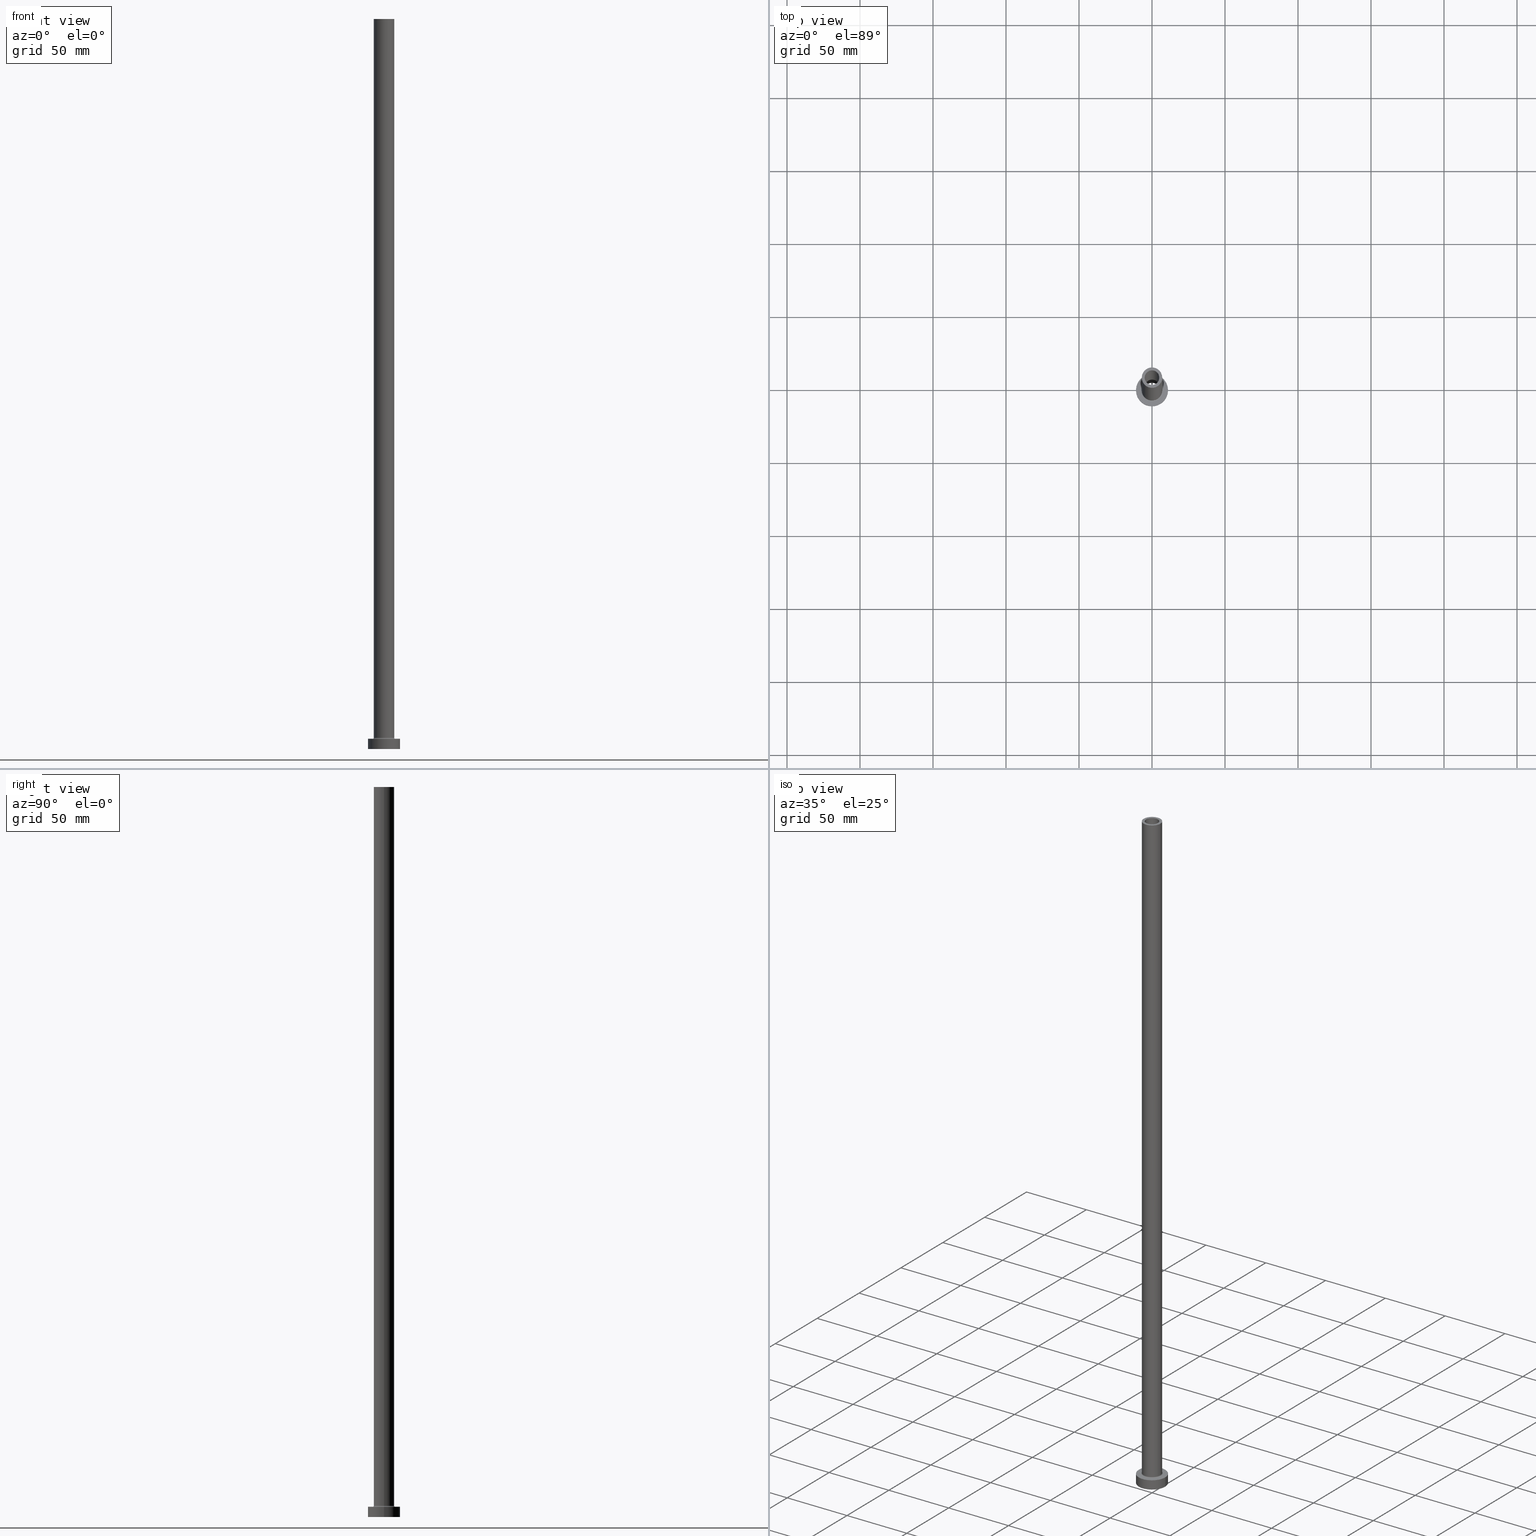
[diagram: canonical four-view strip — front | top / right | iso, engineering-drawing reading convention]
A machine part, canonical four-view strip (front | top / right | iso — engineering-drawing reading convention). The complete STEP part file that produces these views, byte-faithful:
ISO-10303-21;
HEADER;
FILE_DESCRIPTION (( 'STEP AP203' ),
    '1' );
FILE_NAME ('cfa8.STEP',
    '2023-02-13T10:06:08',
    ( '' ),
    ( '' ),
    'SwSTEP 2.0',
    'SolidWorks 2019',
    '' );
FILE_SCHEMA (( 'CONFIG_CONTROL_DESIGN' ));
ENDSEC;

DATA;
#1 = ORIENTED_EDGE ( 'NONE', *, *, #247, .F. ) ;
#2 = AXIS2_PLACEMENT_3D ( 'NONE', #366, #148, #281 ) ;
#3 = ORIENTED_EDGE ( 'NONE', *, *, #323, .F. ) ;
#4 = DIRECTION ( 'NONE',  ( 1.000000000000000000, 0.000000000000000000, 0.000000000000000000 ) ) ;
#5 = ORIENTED_EDGE ( 'NONE', *, *, #421, .F. ) ;
#6 = DIRECTION ( 'NONE',  ( 0.000000000000000000, 0.000000000000000000, 1.000000000000000000 ) ) ;
#7 = APPLICATION_CONTEXT ( 'configuration controlled 3d designs of mechanical parts and assemblies' ) ;
#8 = CARTESIAN_POINT ( 'NONE',  ( -7.000000000000000888, 0.000000000000000000, 500.0000000000000000 ) ) ;
#9 = AXIS2_PLACEMENT_3D ( 'NONE', #28, #390, #241 ) ;
#10 = ORIENTED_EDGE ( 'NONE', *, *, #195, .F. ) ;
#11 = AXIS2_PLACEMENT_3D ( 'NONE', #246, #294, #326 ) ;
#12 = DIRECTION ( 'NONE',  ( 0.000000000000000000, 0.000000000000000000, 1.000000000000000000 ) ) ;
#13 = ORIENTED_EDGE ( 'NONE', *, *, #224, .T. ) ;
#14 = APPROVAL_STATUS ( 'not_yet_approved' ) ;
#15 = CARTESIAN_POINT ( 'NONE',  ( 0.000000000000000000, 0.000000000000000000, 500.0000000000000000 ) ) ;
#16 = COORDINATED_UNIVERSAL_TIME_OFFSET ( 1, 0, .AHEAD. ) ;
#17 = EDGE_LOOP ( 'NONE', ( #370, #393, #122, #286 ) ) ;
#18 = CC_DESIGN_APPROVAL ( #155, ( #460 ) ) ;
#19 = DIRECTION ( 'NONE',  ( 1.000000000000000000, 0.000000000000000000, 0.000000000000000000 ) ) ;
#20 = EDGE_CURVE ( 'NONE', #83, #450, #37, .T. ) ;
#21 = VERTEX_POINT ( 'NONE', #135 ) ;
#22 = DIRECTION ( 'NONE',  ( -1.000000000000000000, 0.000000000000000000, 0.000000000000000000 ) ) ;
#23 = AXIS2_PLACEMENT_3D ( 'NONE', #163, #57, #197 ) ;
#24 = CARTESIAN_POINT ( 'NONE',  ( 5.000000000000000000, 6.123233995736765296E-16, 500.0000000000000000 ) ) ;
#25 = DIRECTION ( 'NONE',  ( 1.000000000000000000, 0.000000000000000000, 0.000000000000000000 ) ) ;
#26 = DIRECTION ( 'NONE',  ( 1.000000000000000000, 0.000000000000000000, 0.000000000000000000 ) ) ;
#27 = DATE_TIME_ROLE ( 'classification_date' ) ;
#28 = CARTESIAN_POINT ( 'NONE',  ( 0.000000000000000000, 0.000000000000000000, 455.0000000000000000 ) ) ;
#29 = CARTESIAN_POINT ( 'NONE',  ( 0.000000000000000000, 0.000000000000000000, 455.0000000000000000 ) ) ;
#30 = DIRECTION ( 'NONE',  ( 1.000000000000000000, 0.000000000000000000, 0.000000000000000000 ) ) ;
#31 = CALENDAR_DATE ( 2023, 13, 2 ) ;
#32 = APPROVAL_PERSON_ORGANIZATION ( #425, #368, #427 ) ;
#33 = CC_DESIGN_PERSON_AND_ORGANIZATION_ASSIGNMENT ( #54, #198, ( #460 ) ) ;
#34 = EDGE_CURVE ( 'NONE', #188, #83, #343, .T. ) ;
#35 = ORIENTED_EDGE ( 'NONE', *, *, #159, .T. ) ;
#36 = ORIENTED_EDGE ( 'NONE', *, *, #421, .T. ) ;
#37 = CIRCLE ( 'NONE', #275, 11.00000000000000000 ) ;
#38 = LINE ( 'NONE', #126, #240 ) ;
#39 = AXIS2_PLACEMENT_3D ( 'NONE', #389, #141, #67 ) ;
#40 = VECTOR ( 'NONE', #110, 1000.000000000000000 ) ;
#41 = AXIS2_PLACEMENT_3D ( 'NONE', #305, #345, #444 ) ;
#42 = ORIENTED_EDGE ( 'NONE', *, *, #89, .F. ) ;
#43 = CARTESIAN_POINT ( 'NONE',  ( 0.000000000000000000, 0.000000000000000000, 7.699999999999985079 ) ) ;
#44 = ORIENTED_EDGE ( 'NONE', *, *, #139, .T. ) ;
#45 = FACE_OUTER_BOUND ( 'NONE', #55, .T. ) ;
#46 = ORIENTED_EDGE ( 'NONE', *, *, #282, .F. ) ;
#47 = CYLINDRICAL_SURFACE ( 'NONE', #446, 11.00000000000000000 ) ;
#48 = AXIS2_PLACEMENT_3D ( 'NONE', #29, #274, #30 ) ;
#49 = DIRECTION ( 'NONE',  ( 1.000000000000000000, 0.000000000000000000, 0.000000000000000000 ) ) ;
#50 = PRODUCT_DEFINITION_FORMATION_WITH_SPECIFIED_SOURCE ( 'LIBOVOLN�', '', #298, .NOT_KNOWN. ) ;
#51 = ADVANCED_FACE ( 'NONE', ( #411 ), #379, .T. ) ;
#52 = CARTESIAN_POINT ( 'NONE',  ( -5.150000000000001243, 0.000000000000000000, 0.000000000000000000 ) ) ;
#53 = EDGE_LOOP ( 'NONE', ( #35, #74, #290, #330 ) ) ;
#54 = PERSON_AND_ORGANIZATION ( #78, #454 ) ;
#55 = EDGE_LOOP ( 'NONE', ( #459, #254 ) ) ;
#56 = ADVANCED_FACE ( 'NONE', ( #95, #98 ), #443, .F. ) ;
#57 = DIRECTION ( 'NONE',  ( 0.000000000000000000, 0.000000000000000000, 1.000000000000000000 ) ) ;
#58 = DIRECTION ( 'NONE',  ( 1.000000000000000000, 0.000000000000000000, -0.000000000000000000 ) ) ;
#59 = DIRECTION ( 'NONE',  ( 0.000000000000000000, 0.000000000000000000, 1.000000000000000000 ) ) ;
#60 = CARTESIAN_POINT ( 'NONE',  ( 0.000000000000000000, 0.000000000000000000, 0.000000000000000000 ) ) ;
#61 = EDGE_CURVE ( 'NONE', #115, #120, #75, .T. ) ;
#62 = CALENDAR_DATE ( 2023, 13, 2 ) ;
#63 = DIRECTION ( 'NONE',  ( 1.000000000000000000, 0.000000000000000000, -0.000000000000000000 ) ) ;
#64 = ADVANCED_FACE ( 'NONE', ( #266 ), #170, .T. ) ;
#65 = APPROVAL_DATE_TIME ( #142, #194 ) ;
#66 = CIRCLE ( 'NONE', #118, 5.000000000000000000 ) ;
#67 = DIRECTION ( 'NONE',  ( 1.000000000000000000, 0.000000000000000000, 0.000000000000000000 ) ) ;
#68 = DATE_TIME_ROLE ( 'creation_date' ) ;
#69 = DIRECTION ( 'NONE',  ( 1.000000000000000000, 0.000000000000000000, 0.000000000000000000 ) ) ;
#70 = EDGE_CURVE ( 'NONE', #115, #396, #260, .T. ) ;
#71 = EDGE_LOOP ( 'NONE', ( #322, #13 ) ) ;
#72 = AXIS2_PLACEMENT_3D ( 'NONE', #371, #335, #221 ) ;
#73 = ORIENTED_EDGE ( 'NONE', *, *, #70, .T. ) ;
#74 = ORIENTED_EDGE ( 'NONE', *, *, #247, .T. ) ;
#75 = CIRCLE ( 'NONE', #86, 0.7000000000000000666 ) ;
#76 = AXIS2_PLACEMENT_3D ( 'NONE', #455, #270, #69 ) ;
#77 = CARTESIAN_POINT ( 'NONE',  ( 5.000000000000000000, 6.123233995736765296E-16, 455.0000000000000000 ) ) ;
#78 = PERSON ( 'NEUR�EN�', 'NEUR�EN�', 'NEUR�EN�', ('NEUR�EN�'), ('NEUR�EN�'), ('NEUR�EN�') ) ;
#79 = EDGE_LOOP ( 'NONE', ( #215, #227 ) ) ;
#80 = DESIGN_CONTEXT ( 'detailed design', #409, 'design' ) ;
#81 = DIRECTION ( 'NONE',  ( -0.000000000000000000, -0.000000000000000000, -1.000000000000000000 ) ) ;
#82 = LOCAL_TIME ( 11, 6, 8.000000000000000000, #313 ) ;
#83 = VERTEX_POINT ( 'NONE', #382 ) ;
#84 = CARTESIAN_POINT ( 'NONE',  ( 0.000000000000000000, 0.000000000000000000, 7.699999999999985079 ) ) ;
#85 = ORIENTED_EDGE ( 'NONE', *, *, #89, .T. ) ;
#86 = AXIS2_PLACEMENT_3D ( 'NONE', #445, #132, #202 ) ;
#87 = CARTESIAN_POINT ( 'NONE',  ( 0.000000000000000000, 0.000000000000000000, 7.000000000000000000 ) ) ;
#88 = VECTOR ( 'NONE', #310, 1000.000000000000000 ) ;
#89 = EDGE_CURVE ( 'NONE', #251, #432, #283, .T. ) ;
#90 = DIRECTION ( 'NONE',  ( -0.000000000000000000, -0.000000000000000000, -1.000000000000000000 ) ) ;
#91 = DIRECTION ( 'NONE',  ( -1.000000000000000000, 0.000000000000000000, 0.000000000000000000 ) ) ;
#92 = ORIENTED_EDGE ( 'NONE', *, *, #262, .F. ) ;
#93 = CC_DESIGN_APPROVAL ( #368, ( #234 ) ) ;
#94 =( NAMED_UNIT ( * ) PLANE_ANGLE_UNIT ( ) SI_UNIT ( $, .RADIAN. ) );
#95 = FACE_BOUND ( 'NONE', #125, .T. ) ;
#96 = EDGE_CURVE ( 'NONE', #394, #450, #235, .T. ) ;
#97 = CARTESIAN_POINT ( 'NONE',  ( 0.000000000000000000, 0.000000000000000000, 7.000000000000000000 ) ) ;
#98 = FACE_OUTER_BOUND ( 'NONE', #301, .T. ) ;
#99 = CYLINDRICAL_SURFACE ( 'NONE', #243, 11.00000000000000000 ) ;
#100 = DIRECTION ( 'NONE',  ( 1.000000000000000000, 0.000000000000000000, 0.000000000000000000 ) ) ;
#101 = CIRCLE ( 'NONE', #278, 11.00000000000000000 ) ;
#102 = DIRECTION ( 'NONE',  ( -0.000000000000000000, -0.000000000000000000, -1.000000000000000000 ) ) ;
#103 = DIRECTION ( 'NONE',  ( -0.000000000000000000, -0.000000000000000000, -1.000000000000000000 ) ) ;
#104 = APPLICATION_PROTOCOL_DEFINITION ( 'international standard', 'config_control_design', 1994, #409 ) ;
#105 = DIRECTION ( 'NONE',  ( 0.000000000000000000, 0.000000000000000000, -1.000000000000000000 ) ) ;
#106 = CARTESIAN_POINT ( 'NONE',  ( 0.000000000000000000, 0.000000000000000000, 500.0000000000000000 ) ) ;
#107 = AXIS2_PLACEMENT_3D ( 'NONE', #172, #211, #357 ) ;
#108 = AXIS2_PLACEMENT_3D ( 'NONE', #97, #203, #348 ) ;
#109 = AXIS2_PLACEMENT_3D ( 'NONE', #351, #304, #25 ) ;
#110 = DIRECTION ( 'NONE',  ( 0.000000000000000000, 0.000000000000000000, -1.000000000000000000 ) ) ;
#111 = CALENDAR_DATE ( 2023, 13, 2 ) ;
#112 = FACE_OUTER_BOUND ( 'NONE', #288, .T. ) ;
#113 = VECTOR ( 'NONE', #267, 1000.000000000000000 ) ;
#114 = CIRCLE ( 'NONE', #329, 5.000000000000000000 ) ;
#115 = VERTEX_POINT ( 'NONE', #136 ) ;
#116 = DATE_AND_TIME ( #111, #356 ) ;
#117 = CIRCLE ( 'NONE', #9, 5.150000000000001243 ) ;
#118 = AXIS2_PLACEMENT_3D ( 'NONE', #395, #130, #255 ) ;
#119 = ORIENTED_EDGE ( 'NONE', *, *, #282, .T. ) ;
#120 = VERTEX_POINT ( 'NONE', #178 ) ;
#121 = DIRECTION ( 'NONE',  ( -1.000000000000000000, 0.000000000000000000, 0.000000000000000000 ) ) ;
#122 = ORIENTED_EDGE ( 'NONE', *, *, #34, .T. ) ;
#123 = FACE_OUTER_BOUND ( 'NONE', #17, .T. ) ;
#124 = VECTOR ( 'NONE', #375, 1000.000000000000000 ) ;
#125 = EDGE_LOOP ( 'NONE', ( #182, #437 ) ) ;
#126 = CARTESIAN_POINT ( 'NONE',  ( -5.000000000000000000, 0.000000000000000000, 500.0000000000000000 ) ) ;
#127 = ORIENTED_EDGE ( 'NONE', *, *, #333, .T. ) ;
#128 = PRODUCT_DEFINITION_SHAPE ( 'NONE', 'NONE',  #460 ) ;
#129 = AXIS2_PLACEMENT_3D ( 'NONE', #236, #244, #100 ) ;
#130 = DIRECTION ( 'NONE',  ( 0.000000000000000000, 0.000000000000000000, 1.000000000000000000 ) ) ;
#131 = EDGE_LOOP ( 'NONE', ( #408, #256 ) ) ;
#132 = DIRECTION ( 'NONE',  ( 1.224646799147353207E-16, 1.000000000000000000, -0.000000000000000000 ) ) ;
#133 = TOROIDAL_SURFACE ( 'NONE', #431, 7.700000000000001066, 0.6999999999999999556 ) ;
#134 = CARTESIAN_POINT ( 'NONE',  ( 11.00000000000000000, 1.347111479062088405E-15, 0.000000000000000000 ) ) ;
#135 = CARTESIAN_POINT ( 'NONE',  ( 7.700000000000001066, 0.000000000000000000, 6.999999999999992006 ) ) ;
#136 = CARTESIAN_POINT ( 'NONE',  ( -7.000000000000000888, 0.000000000000000000, 7.699999999999985079 ) ) ;
#137 = FACE_BOUND ( 'NONE', #166, .T. ) ;
#138 = CIRCLE ( 'NONE', #41, 7.000000000000000888 ) ;
#139 = EDGE_CURVE ( 'NONE', #213, #363, #114, .T. ) ;
#140 = ADVANCED_BREP_SHAPE_REPRESENTATION ( 'cfa8', ( #231, #109 ), #192 ) ;
#141 = DIRECTION ( 'NONE',  ( 0.000000000000000000, 0.000000000000000000, 1.000000000000000000 ) ) ;
#142 = DATE_AND_TIME ( #31, #374 ) ;
#143 = CARTESIAN_POINT ( 'NONE',  ( 0.000000000000000000, 0.000000000000000000, 500.0000000000000000 ) ) ;
#144 = DIRECTION ( 'NONE',  ( 1.000000000000000000, 0.000000000000000000, 0.000000000000000000 ) ) ;
#145 = EDGE_CURVE ( 'NONE', #450, #83, #276, .T. ) ;
#146 = CIRCLE ( 'NONE', #249, 5.000000000000000000 ) ;
#147 = DATE_AND_TIME ( #321, #82 ) ;
#148 = DIRECTION ( 'NONE',  ( 0.000000000000000000, 0.000000000000000000, -1.000000000000000000 ) ) ;
#149 = VERTEX_POINT ( 'NONE', #352 ) ;
#150 = CC_DESIGN_SECURITY_CLASSIFICATION ( #234, ( #50 ) ) ;
#151 = EDGE_CURVE ( 'NONE', #217, #229, #117, .T. ) ;
#152 = EDGE_LOOP ( 'NONE', ( #168, #181, #225, #295 ) ) ;
#153 = ORIENTED_EDGE ( 'NONE', *, *, #70, .F. ) ;
#154 = CARTESIAN_POINT ( 'NONE',  ( 0.000000000000000000, 0.000000000000000000, 7.000000000000000000 ) ) ;
#155 = APPROVAL ( #14, 'NEUR�EN�' ) ;
#156 = CARTESIAN_POINT ( 'NONE',  ( 0.000000000000000000, 0.000000000000000000, 455.0000000000000000 ) ) ;
#157 = AXIS2_PLACEMENT_3D ( 'NONE', #208, #350, #457 ) ;
#158 = CARTESIAN_POINT ( 'NONE',  ( 0.000000000000000000, 0.000000000000000000, 0.000000000000000000 ) ) ;
#159 = EDGE_CURVE ( 'NONE', #229, #217, #391, .T. ) ;
#160 = CARTESIAN_POINT ( 'NONE',  ( 7.000000000000000888, 8.572527594031474176E-16, 7.699999999999985079 ) ) ;
#161 = DIRECTION ( 'NONE',  ( 0.000000000000000000, 0.000000000000000000, 1.000000000000000000 ) ) ;
#162 = CARTESIAN_POINT ( 'NONE',  ( 0.000000000000000000, 0.000000000000000000, 500.0000000000000000 ) ) ;
#163 = CARTESIAN_POINT ( 'NONE',  ( 0.000000000000000000, 0.000000000000000000, 455.0000000000000000 ) ) ;
#164 = CALENDAR_DATE ( 2023, 13, 2 ) ;
#165 = CIRCLE ( 'NONE', #72, 5.150000000000001243 ) ;
#166 = EDGE_LOOP ( 'NONE', ( #42, #190 ) ) ;
#167 = PRODUCT_RELATED_PRODUCT_CATEGORY ( 'detail', '', ( #298 ) ) ;
#168 = ORIENTED_EDGE ( 'NONE', *, *, #224, .F. ) ;
#169 =( LENGTH_UNIT ( ) NAMED_UNIT ( * ) SI_UNIT ( .MILLI., .METRE. ) );
#170 = CYLINDRICAL_SURFACE ( 'NONE', #360, 7.000000000000000888 ) ;
#171 = EDGE_CURVE ( 'NONE', #213, #336, #418, .T. ) ;
#172 = CARTESIAN_POINT ( 'NONE',  ( 0.000000000000000000, 0.000000000000000000, 7.000000000000000000 ) ) ;
#173 = CIRCLE ( 'NONE', #39, 7.000000000000000888 ) ;
#174 = APPROVAL_DATE_TIME ( #116, #368 ) ;
#175 = DIRECTION ( 'NONE',  ( 0.000000000000000000, 0.000000000000000000, 1.000000000000000000 ) ) ;
#176 = APPROVAL_STATUS ( 'not_yet_approved' ) ;
#177 = EDGE_CURVE ( 'NONE', #363, #213, #387, .T. ) ;
#178 = CARTESIAN_POINT ( 'NONE',  ( -7.700000000000001066, 9.429780353434621002E-16, 6.999999999999992006 ) ) ;
#179 = DIRECTION ( 'NONE',  ( 0.000000000000000000, 0.000000000000000000, 1.000000000000000000 ) ) ;
#180 = PERSON_AND_ORGANIZATION_ROLE ( 'classification_officer' ) ;
#181 = ORIENTED_EDGE ( 'NONE', *, *, #262, .T. ) ;
#182 = ORIENTED_EDGE ( 'NONE', *, *, #342, .T. ) ;
#183 = DIRECTION ( 'NONE',  ( 1.000000000000000000, 0.000000000000000000, 0.000000000000000000 ) ) ;
#184 = CIRCLE ( 'NONE', #108, 7.700000000000001066 ) ;
#185 = VERTEX_POINT ( 'NONE', #238 ) ;
#186 = FACE_OUTER_BOUND ( 'NONE', #284, .T. ) ;
#187 = EDGE_CURVE ( 'NONE', #188, #394, #101, .T. ) ;
#188 = VERTEX_POINT ( 'NONE', #385 ) ;
#189 = LINE ( 'NONE', #8, #124 ) ;
#190 = ORIENTED_EDGE ( 'NONE', *, *, #392, .F. ) ;
#191 = DIRECTION ( 'NONE',  ( 0.000000000000000000, 0.000000000000000000, -1.000000000000000000 ) ) ;
#192 =( GEOMETRIC_REPRESENTATION_CONTEXT ( 3 ) GLOBAL_UNCERTAINTY_ASSIGNED_CONTEXT ( ( #271 ) ) GLOBAL_UNIT_ASSIGNED_CONTEXT ( ( #169, #94, #269 ) ) REPRESENTATION_CONTEXT ( 'NONE', 'WORKASPACE' ) );
#193 = ORIENTED_EDGE ( 'NONE', *, *, #435, .T. ) ;
#194 = APPROVAL ( #176, 'NEUR�EN�' ) ;
#195 = EDGE_CURVE ( 'NONE', #394, #188, #308, .T. ) ;
#196 = FACE_BOUND ( 'NONE', #448, .T. ) ;
#197 = DIRECTION ( 'NONE',  ( 1.000000000000000000, 0.000000000000000000, -0.000000000000000000 ) ) ;
#198 = PERSON_AND_ORGANIZATION_ROLE ( 'creator' ) ;
#199 = ORIENTED_EDGE ( 'NONE', *, *, #151, .T. ) ;
#200 = FACE_OUTER_BOUND ( 'NONE', #376, .T. ) ;
#201 = AXIS2_PLACEMENT_3D ( 'NONE', #206, #412, #22 ) ;
#202 = DIRECTION ( 'NONE',  ( -1.000000000000000000, 1.224646799147351975E-16, 0.000000000000000000 ) ) ;
#203 = DIRECTION ( 'NONE',  ( -0.000000000000000000, -0.000000000000000000, -1.000000000000000000 ) ) ;
#204 = ADVANCED_FACE ( 'NONE', ( #362, #312 ), #205, .T. ) ;
#205 = PLANE ( 'NONE',  #157 ) ;
#206 = CARTESIAN_POINT ( 'NONE',  ( 0.000000000000000000, 0.000000000000000000, 469.5663996924429284 ) ) ;
#207 = CARTESIAN_POINT ( 'NONE',  ( 5.150000000000001243, 6.306931015608868610E-16, 455.0000000000000000 ) ) ;
#208 = CARTESIAN_POINT ( 'NONE',  ( 0.000000000000000000, 0.000000000000000000, 500.0000000000000000 ) ) ;
#209 = CC_DESIGN_APPROVAL ( #194, ( #50 ) ) ;
#210 = CARTESIAN_POINT ( 'NONE',  ( -5.150000000000001243, 0.000000000000000000, 455.0000000000000000 ) ) ;
#211 = DIRECTION ( 'NONE',  ( 0.000000000000000000, 0.000000000000000000, 1.000000000000000000 ) ) ;
#212 = COORDINATED_UNIVERSAL_TIME_OFFSET ( 1, 0, .AHEAD. ) ;
#213 = VERTEX_POINT ( 'NONE', #24 ) ;
#214 = ADVANCED_FACE ( 'NONE', ( #137, #272 ), #424, .F. ) ;
#215 = ORIENTED_EDGE ( 'NONE', *, *, #177, .F. ) ;
#216 = CYLINDRICAL_SURFACE ( 'NONE', #11, 5.000000000000000000 ) ;
#217 = VERTEX_POINT ( 'NONE', #207 ) ;
#218 = CIRCLE ( 'NONE', #334, 7.700000000000001066 ) ;
#219 = LINE ( 'NONE', #328, #400 ) ;
#220 = EDGE_LOOP ( 'NONE', ( #1, #199, #378, #85 ) ) ;
#221 = DIRECTION ( 'NONE',  ( 1.000000000000000000, 0.000000000000000000, 0.000000000000000000 ) ) ;
#222 = ORIENTED_EDGE ( 'NONE', *, *, #159, .F. ) ;
#223 = DIRECTION ( 'NONE',  ( 0.000000000000000000, 0.000000000000000000, -1.000000000000000000 ) ) ;
#224 = EDGE_CURVE ( 'NONE', #405, #185, #173, .T. ) ;
#225 = ORIENTED_EDGE ( 'NONE', *, *, #442, .T. ) ;
#226 = DIRECTION ( 'NONE',  ( 1.000000000000000000, 0.000000000000000000, 0.000000000000000000 ) ) ;
#227 = ORIENTED_EDGE ( 'NONE', *, *, #139, .F. ) ;
#228 = PERSON_AND_ORGANIZATION ( #78, #454 ) ;
#229 = VERTEX_POINT ( 'NONE', #210 ) ;
#230 = DIRECTION ( 'NONE',  ( -0.000000000000000000, -0.000000000000000000, -1.000000000000000000 ) ) ;
#231 = MANIFOLD_SOLID_BREP ( 'Odebrat vysunut�m4', #383 ) ;
#232 = EDGE_LOOP ( 'NONE', ( #92, #367, #127, #73 ) ) ;
#233 = CARTESIAN_POINT ( 'NONE',  ( 5.150000000000001243, 6.306931015608868610E-16, 0.000000000000000000 ) ) ;
#234 = SECURITY_CLASSIFICATION ( '', '', #285 ) ;
#235 = LINE ( 'NONE', #420, #88 ) ;
#236 = CARTESIAN_POINT ( 'NONE',  ( 0.000000000000000000, 0.000000000000000000, 7.699999999999985079 ) ) ;
#237 = APPROVAL_ROLE ( '' ) ;
#238 = CARTESIAN_POINT ( 'NONE',  ( -7.000000000000000888, 0.000000000000000000, 500.0000000000000000 ) ) ;
#239 = SHAPE_DEFINITION_REPRESENTATION ( #128, #140 ) ;
#240 = VECTOR ( 'NONE', #191, 1000.000000000000000 ) ;
#241 = DIRECTION ( 'NONE',  ( 1.000000000000000000, 0.000000000000000000, 0.000000000000000000 ) ) ;
#242 = AXIS2_PLACEMENT_3D ( 'NONE', #456, #175, #416 ) ;
#243 = AXIS2_PLACEMENT_3D ( 'NONE', #300, #230, #302 ) ;
#244 = DIRECTION ( 'NONE',  ( 0.000000000000000000, 0.000000000000000000, 1.000000000000000000 ) ) ;
#245 = PERSON_AND_ORGANIZATION ( #78, #454 ) ;
#246 = CARTESIAN_POINT ( 'NONE',  ( 0.000000000000000000, 0.000000000000000000, 500.0000000000000000 ) ) ;
#247 = EDGE_CURVE ( 'NONE', #217, #432, #358, .T. ) ;
#248 = ORIENTED_EDGE ( 'NONE', *, *, #342, .F. ) ;
#249 = AXIS2_PLACEMENT_3D ( 'NONE', #156, #253, #183 ) ;
#250 = PERSON_AND_ORGANIZATION ( #78, #454 ) ;
#251 = VERTEX_POINT ( 'NONE', #52 ) ;
#252 = ORIENTED_EDGE ( 'NONE', *, *, #151, .F. ) ;
#253 = DIRECTION ( 'NONE',  ( 0.000000000000000000, 0.000000000000000000, 1.000000000000000000 ) ) ;
#254 = ORIENTED_EDGE ( 'NONE', *, *, #195, .T. ) ;
#255 = DIRECTION ( 'NONE',  ( 1.000000000000000000, 0.000000000000000000, 0.000000000000000000 ) ) ;
#256 = ORIENTED_EDGE ( 'NONE', *, *, #145, .F. ) ;
#257 = CC_DESIGN_PERSON_AND_ORGANIZATION_ASSIGNMENT ( #386, #355, ( #50 ) ) ;
#258 = CARTESIAN_POINT ( 'NONE',  ( 7.700000000000001066, 0.000000000000000000, 7.699999999999985079 ) ) ;
#259 = CARTESIAN_POINT ( 'NONE',  ( -11.00000000000000000, 0.000000000000000000, 7.000000000000000000 ) ) ;
#260 = CIRCLE ( 'NONE', #129, 7.000000000000000888 ) ;
#261 = CARTESIAN_POINT ( 'NONE',  ( 7.000000000000000888, 8.572527594031474176E-16, 500.0000000000000000 ) ) ;
#262 = EDGE_CURVE ( 'NONE', #405, #396, #297, .T. ) ;
#263 = ORIENTED_EDGE ( 'NONE', *, *, #171, .F. ) ;
#264 = CYLINDRICAL_SURFACE ( 'NONE', #201, 5.150000000000001243 ) ;
#265 = AXIS2_PLACEMENT_3D ( 'NONE', #258, #426, #223 ) ;
#266 = FACE_OUTER_BOUND ( 'NONE', #152, .T. ) ;
#267 = DIRECTION ( 'NONE',  ( -0.000000000000000000, -0.000000000000000000, -1.000000000000000000 ) ) ;
#268 = ADVANCED_FACE ( 'NONE', ( #373 ), #440, .F. ) ;
#269 =( NAMED_UNIT ( * ) SI_UNIT ( $, .STERADIAN. ) SOLID_ANGLE_UNIT ( ) );
#270 = DIRECTION ( 'NONE',  ( 0.000000000000000000, 0.000000000000000000, 1.000000000000000000 ) ) ;
#271 = UNCERTAINTY_MEASURE_WITH_UNIT (LENGTH_MEASURE( 1.000000000000000082E-05 ), #169, 'distance_accuracy_value', 'NONE');
#272 = FACE_OUTER_BOUND ( 'NONE', #131, .T. ) ;
#273 = PERSON_AND_ORGANIZATION ( #78, #454 ) ;
#274 = DIRECTION ( 'NONE',  ( 0.000000000000000000, 0.000000000000000000, 1.000000000000000000 ) ) ;
#275 = AXIS2_PLACEMENT_3D ( 'NONE', #158, #161, #49 ) ;
#276 = CIRCLE ( 'NONE', #76, 11.00000000000000000 ) ;
#277 = DIRECTION ( 'NONE',  ( -0.000000000000000000, -0.000000000000000000, -1.000000000000000000 ) ) ;
#278 = AXIS2_PLACEMENT_3D ( 'NONE', #314, #279, #26 ) ;
#279 = DIRECTION ( 'NONE',  ( 0.000000000000000000, 0.000000000000000000, 1.000000000000000000 ) ) ;
#280 = LOCAL_TIME ( 11, 6, 8.000000000000000000, #16 ) ;
#281 = DIRECTION ( 'NONE',  ( -1.000000000000000000, 0.000000000000000000, 0.000000000000000000 ) ) ;
#282 = EDGE_CURVE ( 'NONE', #363, #149, #38, .T. ) ;
#283 = CIRCLE ( 'NONE', #339, 5.150000000000001243 ) ;
#284 = EDGE_LOOP ( 'NONE', ( #332, #364, #338, #5 ) ) ;
#285 = SECURITY_CLASSIFICATION_LEVEL ( 'unclassified' ) ;
#286 = ORIENTED_EDGE ( 'NONE', *, *, #20, .T. ) ;
#287 = APPROVAL_PERSON_ORGANIZATION ( #228, #155, #237 ) ;
#288 = EDGE_LOOP ( 'NONE', ( #263, #44, #119, #3 ) ) ;
#289 = CARTESIAN_POINT ( 'NONE',  ( -5.000000000000000000, 0.000000000000000000, 500.0000000000000000 ) ) ;
#290 = ORIENTED_EDGE ( 'NONE', *, *, #392, .T. ) ;
#291 = ORIENTED_EDGE ( 'NONE', *, *, #435, .F. ) ;
#292 = CC_DESIGN_DATE_AND_TIME_ASSIGNMENT ( #147, #27, ( #234 ) ) ;
#293 = VECTOR ( 'NONE', #105, 1000.000000000000000 ) ;
#294 = DIRECTION ( 'NONE',  ( 0.000000000000000000, 0.000000000000000000, -1.000000000000000000 ) ) ;
#295 = ORIENTED_EDGE ( 'NONE', *, *, #333, .F. ) ;
#296 = ADVANCED_FACE ( 'NONE', ( #331 ), #398, .F. ) ;
#297 = LINE ( 'NONE', #261, #430 ) ;
#298 = PRODUCT ( 'cfa8', 'cfa8', '', ( #307 ) ) ;
#299 = DIRECTION ( 'NONE',  ( -1.000000000000000000, 0.000000000000000000, 0.000000000000000000 ) ) ;
#300 = CARTESIAN_POINT ( 'NONE',  ( 0.000000000000000000, 0.000000000000000000, 7.000000000000000000 ) ) ;
#301 = EDGE_LOOP ( 'NONE', ( #222, #252 ) ) ;
#302 = DIRECTION ( 'NONE',  ( -1.000000000000000000, 0.000000000000000000, 0.000000000000000000 ) ) ;
#303 = AXIS2_PLACEMENT_3D ( 'NONE', #162, #452, #449 ) ;
#304 = DIRECTION ( 'NONE',  ( 0.000000000000000000, 0.000000000000000000, 1.000000000000000000 ) ) ;
#305 = CARTESIAN_POINT ( 'NONE',  ( 0.000000000000000000, 0.000000000000000000, 7.699999999999985079 ) ) ;
#306 = CARTESIAN_POINT ( 'NONE',  ( 5.000000000000000000, 6.123233995736765296E-16, 500.0000000000000000 ) ) ;
#307 = MECHANICAL_CONTEXT ( 'NONE', #7, 'mechanical' ) ;
#308 = CIRCLE ( 'NONE', #107, 11.00000000000000000 ) ;
#309 = APPROVAL_PERSON_ORGANIZATION ( #315, #194, #419 ) ;
#310 = DIRECTION ( 'NONE',  ( -0.000000000000000000, -0.000000000000000000, -1.000000000000000000 ) ) ;
#311 = COORDINATED_UNIVERSAL_TIME_OFFSET ( 1, 0, .AHEAD. ) ;
#312 = FACE_OUTER_BOUND ( 'NONE', #71, .T. ) ;
#313 = COORDINATED_UNIVERSAL_TIME_OFFSET ( 1, 0, .AHEAD. ) ;
#314 = CARTESIAN_POINT ( 'NONE',  ( 0.000000000000000000, 0.000000000000000000, 7.000000000000000000 ) ) ;
#315 = PERSON_AND_ORGANIZATION ( #78, #454 ) ;
#316 = ADVANCED_FACE ( 'NONE', ( #112 ), #216, .F. ) ;
#317 = CARTESIAN_POINT ( 'NONE',  ( 5.150000000000001243, 6.306931015608868610E-16, 469.5663996924429284 ) ) ;
#318 = CIRCLE ( 'NONE', #265, 0.7000000000000000666 ) ;
#319 = EDGE_CURVE ( 'NONE', #396, #21, #318, .T. ) ;
#320 = ADVANCED_FACE ( 'NONE', ( #123 ), #47, .T. ) ;
#321 = CALENDAR_DATE ( 2023, 13, 2 ) ;
#322 = ORIENTED_EDGE ( 'NONE', *, *, #415, .T. ) ;
#323 = EDGE_CURVE ( 'NONE', #336, #149, #66, .T. ) ;
#324 = ORIENTED_EDGE ( 'NONE', *, *, #96, .T. ) ;
#325 = TOROIDAL_SURFACE ( 'NONE', #346, 7.700000000000001066, 0.6999999999999999556 ) ;
#326 = DIRECTION ( 'NONE',  ( -1.000000000000000000, 0.000000000000000000, 0.000000000000000000 ) ) ;
#327 = EDGE_LOOP ( 'NONE', ( #153, #439, #291, #433 ) ) ;
#328 = CARTESIAN_POINT ( 'NONE',  ( -5.150000000000001243, 0.000000000000000000, 469.5663996924429284 ) ) ;
#329 = AXIS2_PLACEMENT_3D ( 'NONE', #106, #59, #381 ) ;
#330 = ORIENTED_EDGE ( 'NONE', *, *, #354, .F. ) ;
#331 = FACE_OUTER_BOUND ( 'NONE', #53, .T. ) ;
#332 = ORIENTED_EDGE ( 'NONE', *, *, #61, .F. ) ;
#333 = EDGE_CURVE ( 'NONE', #185, #115, #189, .T. ) ;
#334 = AXIS2_PLACEMENT_3D ( 'NONE', #380, #102, #19 ) ;
#335 = DIRECTION ( 'NONE',  ( -0.000000000000000000, -0.000000000000000000, -1.000000000000000000 ) ) ;
#336 = VERTEX_POINT ( 'NONE', #77 ) ;
#337 = DATE_AND_TIME ( #62, #407 ) ;
#338 = ORIENTED_EDGE ( 'NONE', *, *, #319, .T. ) ;
#339 = AXIS2_PLACEMENT_3D ( 'NONE', #453, #277, #144 ) ;
#340 = FACE_OUTER_BOUND ( 'NONE', #220, .T. ) ;
#341 = CC_DESIGN_DATE_AND_TIME_ASSIGNMENT ( #422, #68, ( #460 ) ) ;
#342 = EDGE_CURVE ( 'NONE', #149, #336, #146, .T. ) ;
#343 = LINE ( 'NONE', #259, #113 ) ;
#344 = AXIS2_PLACEMENT_3D ( 'NONE', #436, #406, #91 ) ;
#345 = DIRECTION ( 'NONE',  ( 0.000000000000000000, 0.000000000000000000, 1.000000000000000000 ) ) ;
#346 = AXIS2_PLACEMENT_3D ( 'NONE', #43, #438, #4 ) ;
#347 = ORIENTED_EDGE ( 'NONE', *, *, #171, .T. ) ;
#348 = DIRECTION ( 'NONE',  ( 1.000000000000000000, 0.000000000000000000, 0.000000000000000000 ) ) ;
#349 = CC_DESIGN_PERSON_AND_ORGANIZATION_ASSIGNMENT ( #250, #180, ( #234 ) ) ;
#350 = DIRECTION ( 'NONE',  ( 0.000000000000000000, 0.000000000000000000, 1.000000000000000000 ) ) ;
#351 = CARTESIAN_POINT ( 'NONE',  ( 0.000000000000000000, 0.000000000000000000, 0.000000000000000000 ) ) ;
#352 = CARTESIAN_POINT ( 'NONE',  ( -5.000000000000000000, 0.000000000000000000, 455.0000000000000000 ) ) ;
#353 = ADVANCED_FACE ( 'NONE', ( #186 ), #325, .F. ) ;
#354 = EDGE_CURVE ( 'NONE', #229, #251, #219, .T. ) ;
#355 = PERSON_AND_ORGANIZATION_ROLE ( 'design_supplier' ) ;
#356 = LOCAL_TIME ( 11, 6, 8.000000000000000000, #212 ) ;
#357 = DIRECTION ( 'NONE',  ( 1.000000000000000000, 0.000000000000000000, 0.000000000000000000 ) ) ;
#358 = LINE ( 'NONE', #317, #40 ) ;
#359 = PERSON_AND_ORGANIZATION_ROLE ( 'creator' ) ;
#360 = AXIS2_PLACEMENT_3D ( 'NONE', #143, #103, #413 ) ;
#361 = ADVANCED_FACE ( 'NONE', ( #402 ), #133, .F. ) ;
#362 = FACE_BOUND ( 'NONE', #79, .T. ) ;
#363 = VERTEX_POINT ( 'NONE', #289 ) ;
#364 = ORIENTED_EDGE ( 'NONE', *, *, #442, .F. ) ;
#365 = EDGE_LOOP ( 'NONE', ( #403, #347, #248, #46 ) ) ;
#366 = CARTESIAN_POINT ( 'NONE',  ( 0.000000000000000000, 0.000000000000000000, 469.5663996924429284 ) ) ;
#367 = ORIENTED_EDGE ( 'NONE', *, *, #415, .F. ) ;
#368 = APPROVAL ( #428, 'NEUR�EN�' ) ;
#369 = PLANE ( 'NONE',  #423 ) ;
#370 = ORIENTED_EDGE ( 'NONE', *, *, #96, .F. ) ;
#371 = CARTESIAN_POINT ( 'NONE',  ( 0.000000000000000000, 0.000000000000000000, 0.000000000000000000 ) ) ;
#372 = ORIENTED_EDGE ( 'NONE', *, *, #145, .T. ) ;
#373 = FACE_OUTER_BOUND ( 'NONE', #365, .T. ) ;
#374 = LOCAL_TIME ( 11, 6, 8.000000000000000000, #311 ) ;
#375 = DIRECTION ( 'NONE',  ( -0.000000000000000000, -0.000000000000000000, -1.000000000000000000 ) ) ;
#376 = EDGE_LOOP ( 'NONE', ( #10, #324, #372, #399 ) ) ;
#377 = APPROVAL_DATE_TIME ( #337, #155 ) ;
#378 = ORIENTED_EDGE ( 'NONE', *, *, #354, .T. ) ;
#379 = CYLINDRICAL_SURFACE ( 'NONE', #441, 7.000000000000000888 ) ;
#380 = CARTESIAN_POINT ( 'NONE',  ( 0.000000000000000000, 0.000000000000000000, 7.000000000000000000 ) ) ;
#381 = DIRECTION ( 'NONE',  ( 1.000000000000000000, 0.000000000000000000, 0.000000000000000000 ) ) ;
#382 = CARTESIAN_POINT ( 'NONE',  ( -11.00000000000000000, 0.000000000000000000, 0.000000000000000000 ) ) ;
#383 = CLOSED_SHELL ( 'NONE', ( #268, #296, #361, #64, #429, #320, #401, #214, #51, #204, #353, #461, #56, #316 ) ) ;
#384 = COORDINATED_UNIVERSAL_TIME_OFFSET ( 1, 0, .AHEAD. ) ;
#385 = CARTESIAN_POINT ( 'NONE',  ( -11.00000000000000000, 0.000000000000000000, 7.000000000000000000 ) ) ;
#386 = PERSON_AND_ORGANIZATION ( #78, #454 ) ;
#387 = CIRCLE ( 'NONE', #242, 5.000000000000000000 ) ;
#388 = CIRCLE ( 'NONE', #303, 7.000000000000000888 ) ;
#389 = CARTESIAN_POINT ( 'NONE',  ( 0.000000000000000000, 0.000000000000000000, 500.0000000000000000 ) ) ;
#390 = DIRECTION ( 'NONE',  ( 0.000000000000000000, 0.000000000000000000, 1.000000000000000000 ) ) ;
#391 = CIRCLE ( 'NONE', #48, 5.150000000000001243 ) ;
#392 = EDGE_CURVE ( 'NONE', #432, #251, #165, .T. ) ;
#393 = ORIENTED_EDGE ( 'NONE', *, *, #187, .F. ) ;
#394 = VERTEX_POINT ( 'NONE', #458 ) ;
#395 = CARTESIAN_POINT ( 'NONE',  ( 0.000000000000000000, 0.000000000000000000, 455.0000000000000000 ) ) ;
#396 = VERTEX_POINT ( 'NONE', #160 ) ;
#397 = CC_DESIGN_PERSON_AND_ORGANIZATION_ASSIGNMENT ( #245, #359, ( #50 ) ) ;
#398 = CYLINDRICAL_SURFACE ( 'NONE', #2, 5.150000000000001243 ) ;
#399 = ORIENTED_EDGE ( 'NONE', *, *, #34, .F. ) ;
#400 = VECTOR ( 'NONE', #404, 1000.000000000000000 ) ;
#401 = ADVANCED_FACE ( 'NONE', ( #196, #45 ), #369, .T. ) ;
#402 = FACE_OUTER_BOUND ( 'NONE', #327, .T. ) ;
#403 = ORIENTED_EDGE ( 'NONE', *, *, #177, .T. ) ;
#404 = DIRECTION ( 'NONE',  ( 0.000000000000000000, 0.000000000000000000, -1.000000000000000000 ) ) ;
#405 = VERTEX_POINT ( 'NONE', #410 ) ;
#406 = DIRECTION ( 'NONE',  ( 0.000000000000000000, 0.000000000000000000, -1.000000000000000000 ) ) ;
#407 = LOCAL_TIME ( 11, 6, 8.000000000000000000, #384 ) ;
#408 = ORIENTED_EDGE ( 'NONE', *, *, #20, .F. ) ;
#409 = APPLICATION_CONTEXT ( 'configuration controlled 3d designs of mechanical parts and assemblies' ) ;
#410 = CARTESIAN_POINT ( 'NONE',  ( 7.000000000000000888, 8.572527594031474176E-16, 500.0000000000000000 ) ) ;
#411 = FACE_OUTER_BOUND ( 'NONE', #232, .T. ) ;
#412 = DIRECTION ( 'NONE',  ( 0.000000000000000000, 0.000000000000000000, -1.000000000000000000 ) ) ;
#413 = DIRECTION ( 'NONE',  ( -1.000000000000000000, 0.000000000000000000, 0.000000000000000000 ) ) ;
#414 = AXIS2_PLACEMENT_3D ( 'NONE', #60, #179, #63 ) ;
#415 = EDGE_CURVE ( 'NONE', #185, #405, #388, .T. ) ;
#416 = DIRECTION ( 'NONE',  ( 1.000000000000000000, 0.000000000000000000, 0.000000000000000000 ) ) ;
#417 = PERSON_AND_ORGANIZATION_ROLE ( 'design_owner' ) ;
#418 = LINE ( 'NONE', #306, #293 ) ;
#419 = APPROVAL_ROLE ( '' ) ;
#420 = CARTESIAN_POINT ( 'NONE',  ( 11.00000000000000000, 1.347111479062088405E-15, 7.000000000000000000 ) ) ;
#421 = EDGE_CURVE ( 'NONE', #120, #21, #184, .T. ) ;
#422 = DATE_AND_TIME ( #164, #280 ) ;
#423 = AXIS2_PLACEMENT_3D ( 'NONE', #87, #12, #58 ) ;
#424 = PLANE ( 'NONE',  #414 ) ;
#425 = PERSON_AND_ORGANIZATION ( #78, #454 ) ;
#426 = DIRECTION ( 'NONE',  ( 0.000000000000000000, -1.000000000000000000, 0.000000000000000000 ) ) ;
#427 = APPROVAL_ROLE ( '' ) ;
#428 = APPROVAL_STATUS ( 'not_yet_approved' ) ;
#429 = ADVANCED_FACE ( 'NONE', ( #200 ), #99, .T. ) ;
#430 = VECTOR ( 'NONE', #81, 1000.000000000000000 ) ;
#431 = AXIS2_PLACEMENT_3D ( 'NONE', #84, #6, #226 ) ;
#432 = VERTEX_POINT ( 'NONE', #233 ) ;
#433 = ORIENTED_EDGE ( 'NONE', *, *, #319, .F. ) ;
#434 = DIRECTION ( 'NONE',  ( -0.000000000000000000, -0.000000000000000000, -1.000000000000000000 ) ) ;
#435 = EDGE_CURVE ( 'NONE', #21, #120, #218, .T. ) ;
#436 = CARTESIAN_POINT ( 'NONE',  ( 0.000000000000000000, 0.000000000000000000, 500.0000000000000000 ) ) ;
#437 = ORIENTED_EDGE ( 'NONE', *, *, #323, .T. ) ;
#438 = DIRECTION ( 'NONE',  ( 0.000000000000000000, 0.000000000000000000, 1.000000000000000000 ) ) ;
#439 = ORIENTED_EDGE ( 'NONE', *, *, #61, .T. ) ;
#440 = CYLINDRICAL_SURFACE ( 'NONE', #344, 5.000000000000000000 ) ;
#441 = AXIS2_PLACEMENT_3D ( 'NONE', #15, #90, #299 ) ;
#442 = EDGE_CURVE ( 'NONE', #396, #115, #138, .T. ) ;
#443 = PLANE ( 'NONE',  #23 ) ;
#444 = DIRECTION ( 'NONE',  ( 1.000000000000000000, 0.000000000000000000, 0.000000000000000000 ) ) ;
#445 = CARTESIAN_POINT ( 'NONE',  ( -7.700000000000001066, 9.429780353434621002E-16, 7.699999999999985079 ) ) ;
#446 = AXIS2_PLACEMENT_3D ( 'NONE', #154, #434, #121 ) ;
#447 = APPLICATION_PROTOCOL_DEFINITION ( 'international standard', 'config_control_design', 1994, #7 ) ;
#448 = EDGE_LOOP ( 'NONE', ( #193, #36 ) ) ;
#449 = DIRECTION ( 'NONE',  ( 1.000000000000000000, 0.000000000000000000, 0.000000000000000000 ) ) ;
#450 = VERTEX_POINT ( 'NONE', #134 ) ;
#451 = CC_DESIGN_PERSON_AND_ORGANIZATION_ASSIGNMENT ( #273, #417, ( #298 ) ) ;
#452 = DIRECTION ( 'NONE',  ( 0.000000000000000000, 0.000000000000000000, 1.000000000000000000 ) ) ;
#453 = CARTESIAN_POINT ( 'NONE',  ( 0.000000000000000000, 0.000000000000000000, 0.000000000000000000 ) ) ;
#454 = ORGANIZATION ( 'NEUR�EN�', 'NEUR�EN�', '' ) ;
#455 = CARTESIAN_POINT ( 'NONE',  ( 0.000000000000000000, 0.000000000000000000, 0.000000000000000000 ) ) ;
#456 = CARTESIAN_POINT ( 'NONE',  ( 0.000000000000000000, 0.000000000000000000, 500.0000000000000000 ) ) ;
#457 = DIRECTION ( 'NONE',  ( 1.000000000000000000, 0.000000000000000000, -0.000000000000000000 ) ) ;
#458 = CARTESIAN_POINT ( 'NONE',  ( 11.00000000000000000, 1.347111479062088405E-15, 7.000000000000000000 ) ) ;
#459 = ORIENTED_EDGE ( 'NONE', *, *, #187, .T. ) ;
#460 = PRODUCT_DEFINITION ( 'NEZN�M�', '', #50, #80 ) ;
#461 = ADVANCED_FACE ( 'NONE', ( #340 ), #264, .F. ) ;
ENDSEC;
END-ISO-10303-21;
